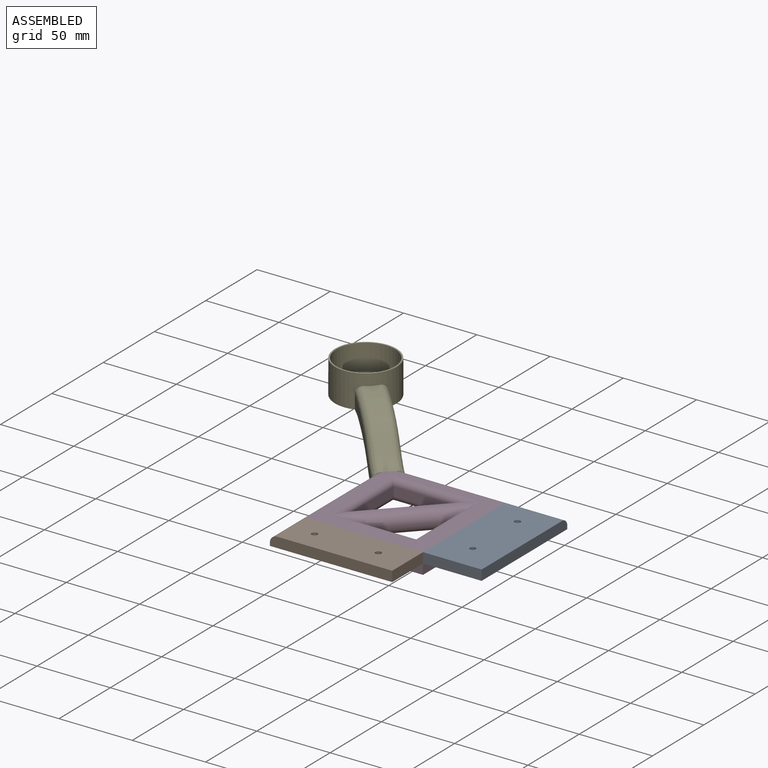
[diagram: assembled view]
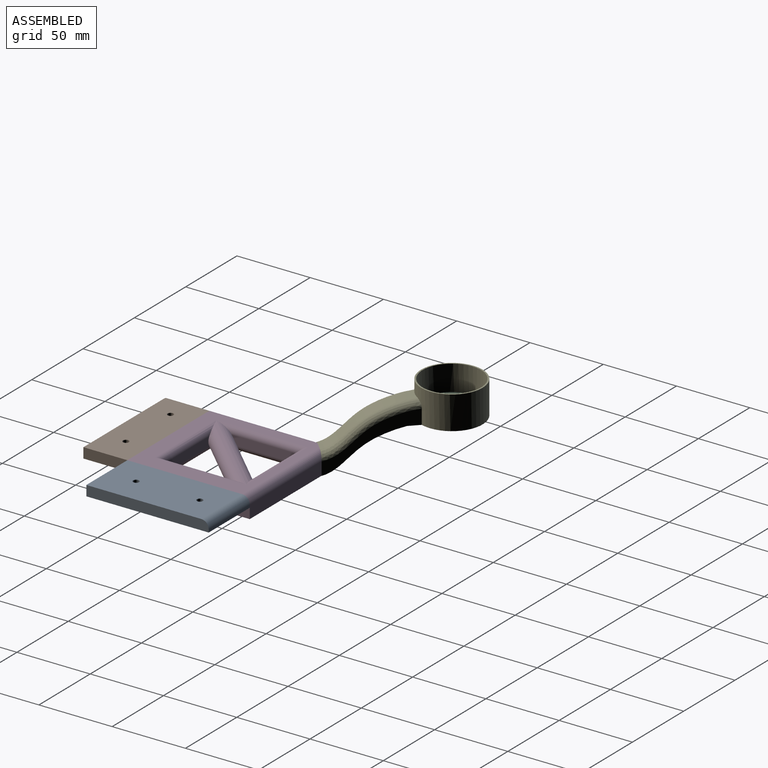
[diagram: assembled view, second angle]
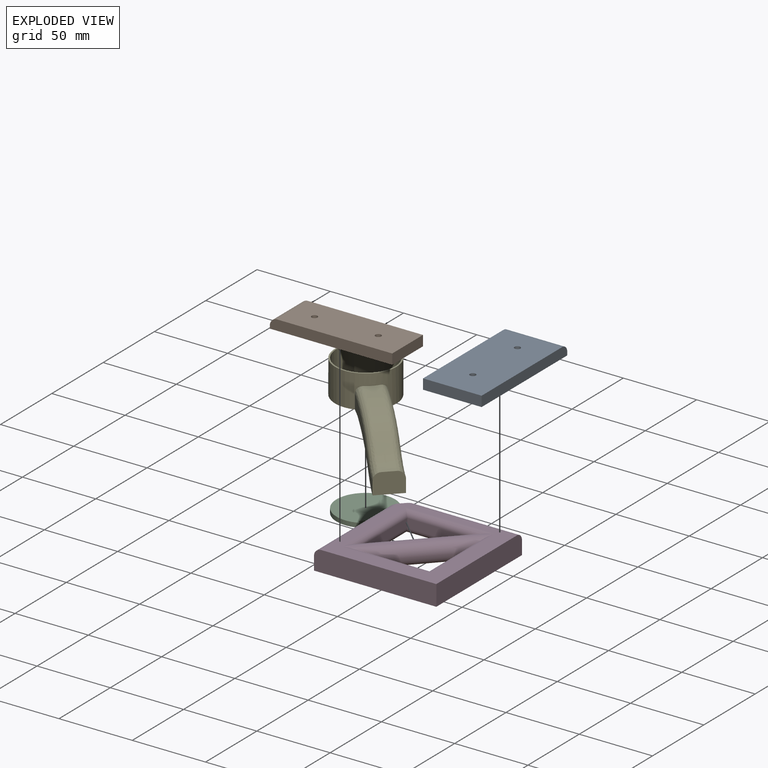
[diagram: exploded view]
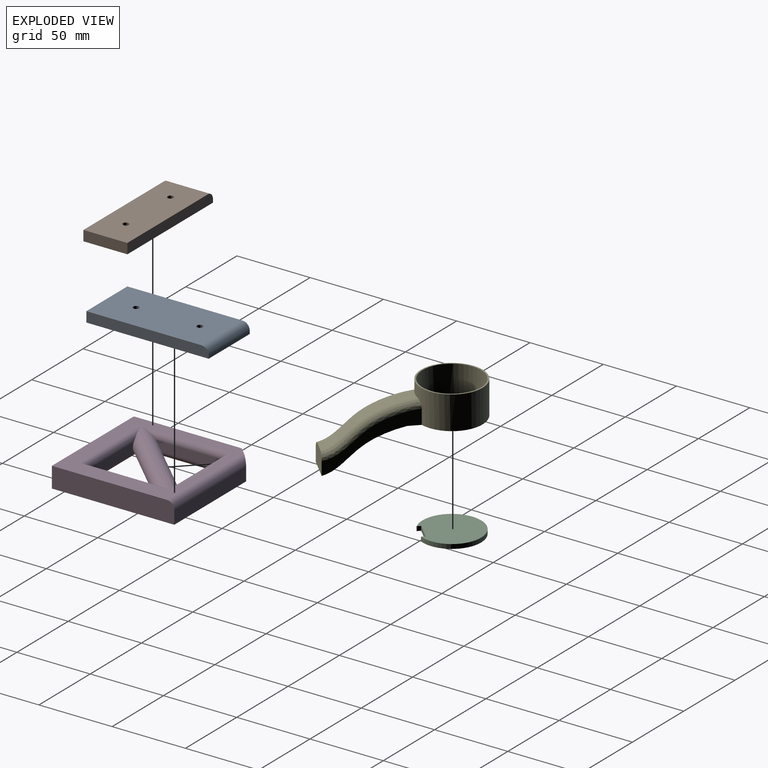
[diagram: exploded view, second angle]
ASSEMBLY  parts=5 mates=3
PART A: 9 faces, bbox 40x83.5x7 mm
  f0: plane 40x2mm, normal (0,1,0), area 80mm2, adj f1,f5,f6,f8
  f1: plane 83.51x7mm, normal (-1,0,0), area 579.2mm2, adj f0,f2,f6,f7,f8
  f2: plane 40x7mm, normal (0,-1,0), area 280mm2, adj f1,f5,f6,f7
  f3: cylinder r=2mm len=7mm, axis (0,0,1), area 88mm2, adj f6,f7
  f4: cylinder r=2mm len=7mm, axis (0,0,1), area 88mm2, adj f6,f7
  f5: plane 83.51x7mm, normal (1,0,0), area 579.2mm2, adj f0,f2,f6,f7,f8
  f6: plane 83.51x40mm, normal (0,0,-1), area 3315.3mm2, adj f0,f1,f2,f3,f4,f5
  f7: plane 78.51x40mm, normal (0,0,1), area 3115.3mm2, adj f1,f2,f3,f4,f5,f8
  f8: cylinder r=5mm len=40mm, axis (-1,0,0), area 314.2mm2, adj f0,f1,f5,f7
PART B: 9 faces, bbox 83.5x30x7 mm
  f0: plane 83.51x7mm, normal (0,1,0), area 579.2mm2, adj f1,f4,f6,f7,f8
  f1: plane 30x2mm, normal (-1,0,0), area 60mm2, adj f0,f2,f6,f8
  f2: plane 83.51x7mm, normal (0,-1,0), area 579.2mm2, adj f1,f4,f6,f7,f8
  f3: cylinder r=2mm len=7mm, axis (0,0,1), area 88mm2, adj f6,f7
  f4: plane 30x7mm, normal (1,0,0), area 210mm2, adj f0,f2,f6,f7
  f5: cylinder r=2mm len=7mm, axis (0,0,1), area 88mm2, adj f6,f7
  f6: plane 83.51x30mm, normal (0,0,-1), area 2480.2mm2, adj f0,f1,f2,f3,f4,f5
  f7: plane 78.51x30mm, normal (0,0,1), area 2330.2mm2, adj f0,f2,f3,f4,f5,f8
  f8: cylinder r=5mm len=30mm, axis (0,-1,0), area 235.6mm2, adj f0,f1,f2,f7
PART C: 6 faces, bbox 38.7x40x3 mm
  f0: plane 3x2.56mm, normal (0,-1,0), area 7.7mm2, adj f1,f3,f4,f5
  f1: cylinder r=20mm len=40mm, axis (0,0,-1), area 334.1mm2, adj f0,f2,f4,f5
  f2: plane 3x2.56mm, normal (0,1,0), area 7.7mm2, adj f1,f3,f4,f5
  f3: plane 14x3mm, normal (1,0,0), area 42mm2, adj f0,f2,f4,f5
  f4: plane 40x38.74mm, normal (0,0,1), area 1208.9mm2, adj f0,f1,f2,f3
  f5: plane 40x38.74mm, normal (0,0,-1), area 1208.9mm2, adj f0,f1,f2,f3
PART D: 23 faces, bbox 83.5x83.5x14 mm
  f0: plane 45.42x6mm, normal (1,0,0), area 268.6mm2, adj f1,f12,f15,f19
  f1: plane 43.75x6mm, normal (0,-1,0), area 258.7mm2, adj f0,f12,f16,f20
  f2: plane 70.08x9mm, normal (-1,0,0), area 630.7mm2, adj f3,f8,f9,f22
  f3: plane 83.51x14mm, normal (0,-1,0), area 1163.8mm2, adj f2,f4,f9,f10,f22
  f4: plane 83.51x14mm, normal (1,0,0), area 1163.8mm2, adj f3,f5,f9,f10,f21
  f5: plane 70.08x9mm, normal (0,1,0), area 630.7mm2, adj f4,f8,f9,f21
  f6: plane 43.75x6mm, normal (0,1,0), area 258.7mm2, adj f7,f11,f13,f17
  f7: plane 45.42x6mm, normal (-1,0,0), area 268.6mm2, adj f6,f11,f14,f18
  f8: plane 14x13.44mm, normal (-0.71,0.71,0), area 250.8mm2, adj f2,f5,f9,f10,f21,f22
  f9: plane 83.51x83.51mm, normal (0,0,-1), area 3098.6mm2, adj f2,f3,f4,f5,f8,f11,f12,f17
  f10: plane 78.51x78.51mm, normal (0,0,1), area 2372.8mm2, adj f3,f4,f8,f11,f12,f13,f14,f15
  f11: cylinder r=7mm len=67.54mm, axis (-0.69,-0.72,0), area 1536.3mm2, adj f6,f7,f9,f10,f13,f14,f17,f18
  f12: cylinder r=7mm len=67.54mm, axis (0.69,0.72,0), area 1536.3mm2, adj f0,f1,f9,f10,f15,f16,f19,f20
  f13: cylinder r=4mm len=60.38mm, axis (-1,0,0), area 316.3mm2, adj f6,f10,f11,f14
  f14: cylinder r=4mm len=62.69mm, axis (0,-1,0), area 328.4mm2, adj f7,f10,f11,f13
  f15: cylinder r=4mm len=62.69mm, axis (0,1,0), area 328.4mm2, adj f0,f10,f12,f16
  f16: cylinder r=4mm len=60.38mm, axis (1,0,0), area 316.3mm2, adj f1,f10,f12,f15
  f17: cylinder r=4mm len=60.38mm, axis (1,0,0), area 316.3mm2, adj f6,f9,f11,f18
  f18: cylinder r=4mm len=62.69mm, axis (0,1,0), area 328.4mm2, adj f7,f9,f11,f17
  f19: cylinder r=4mm len=62.69mm, axis (0,-1,0), area 328.4mm2, adj f0,f9,f12,f20
  f20: cylinder r=4mm len=60.38mm, axis (-1,0,0), area 316.3mm2, adj f1,f9,f12,f19
  f21: cylinder r=5mm len=75.08mm, axis (-1,0,0), area 564.6mm2, adj f4,f5,f8,f10
  f22: cylinder r=5mm len=75.08mm, axis (0,-1,0), area 564.6mm2, adj f2,f3,f8,f10
PART E: 36 faces, bbox 98.7x42.7x50.2 mm
  f0: plane 8.39x3.64mm, normal (0,0,-1), area 27.3mm2, adj f14,f15,f22,f25
  f1: cylinder r=20mm len=40mm, axis (0,0,-1), area 2765.1mm2, adj f3,f4,f6,f8,f13,f14,f24,f25
  f2: plane 8.39x3.64mm, normal (0,0,-1), area 27.3mm2, adj f14,f16,f22,f27
  f3: plane 5.01x2.02mm, normal (0,-1,0), area 8.2mm2, adj f1,f5,f9,f10,f11,f23,f24
  f4: plane 5.01x2.02mm, normal (0,1,0), area 8.2mm2, adj f1,f5,f17,f18,f19,f23,f24
  f5: plane 19x2.63mm, normal (-1,0,0), area 50mm2, adj f3,f4,f23,f24
  f6: plane 5.01x2.56mm, normal (0,-1,0), area 11.8mm2, adj f1,f7,f17,f18,f19,f23,f24
  f7: plane 14x3.75mm, normal (1,0,0), area 52.5mm2, adj f6,f8,f23,f24
  f8: plane 5.01x2.56mm, normal (0,1,0), area 11.8mm2, adj f1,f7,f9,f10,f11,f23,f24
  f9: plane 2.53x1.67mm, normal (0,0,-1), area 2.8mm2, adj f3,f8,f10,f14
  f10: plane 2.5x1.02mm, normal (-1,0,0), area 2.6mm2, adj f3,f8,f9,f11
  f11: bspline ~19x6mm, area 0.2mm2, adj f3,f8,f10,f23
  f12: cylinder r=21mm len=42mm, axis (0,0,-1), area 2714.2mm2, adj f13,f14,f15,f16,f20,f34,f35
  f13: plane 42x42mm, normal (0,0,1), area 128.8mm2, adj f1,f12
  f14: plane 42.01x41.18mm, normal (0,0,-1), area 116.9mm2, adj f0,f1,f2,f9,f12,f17,f25,f27
  f15: plane 56.88x36.9mm, normal (0,1,0), area 477.4mm2, adj f0,f12,f21,f22,f35
  f16: plane 56.88x36.9mm, normal (0,-1,0), area 477.4mm2, adj f2,f12,f21,f22,f34
  f17: plane 2.53x1.67mm, normal (0,0,-1), area 2.8mm2, adj f4,f6,f14,f18
  f18: plane 2.5x1.02mm, normal (-1,0,0), area 2.6mm2, adj f4,f6,f17,f19
  f19: bspline ~19x6mm, area 0.2mm2, adj f4,f6,f18,f23
  f20: bspline ~60x27.95mm, area 566.8mm2, adj f12,f21,f34,f35
  f21: plane 19.48x14.48mm, normal (1,0,0), area 255mm2, adj f15,f16,f20,f22,f34,f35
  f22: bspline ~49.07x26.98mm, area 529.9mm2, adj f0,f2,f15,f16,f21,f25,f27,f29
  f23: cylinder r=1.36mm len=19mm, axis (0,1,0), area 29.4mm2, adj f3,f4,f5,f6,f7,f8,f11,f19
  f24: plane 19x3.15mm, normal (0,0,1), area 21.3mm2, adj f1,f3,f4,f5,f6,f7,f8
  f25: plane 36.34x16.73mm, normal (0,-1,0), area 80mm2, adj f0,f1,f14,f22,f26,f28,f29
  f26: plane 11.8x3.59mm, normal (0,0,-1), area 35.3mm2, adj f1,f25,f27,f28
  f27: plane 36.32x16.71mm, normal (0,1,0), area 81mm2, adj f1,f2,f14,f22,f26,f28,f29
  f28: plane 11.8x0.38mm, normal (-1,0,0), area 4.5mm2, adj f25,f26,f27,f29
  f29: bspline ~37.54x19.62mm, area 427.8mm2, adj f22,f25,f27,f28
  f30: bspline ~18.51x11.8mm, area 173.7mm2, adj f22,f31,f32,f33
  f31: plane 11.8x2.38mm, normal (-0.97,0,0.26), area 29mm2, adj f22,f30,f32,f33
  f32: plane 13.58x9.64mm, normal (0,-1,0), area 16.6mm2, adj f22,f30,f31
  f33: plane 13.75x9.8mm, normal (0,1,0), area 16.9mm2, adj f22,f30,f31
  f34: bspline ~58.56x33.09mm, area 502.8mm2, adj f12,f16,f20,f21
  f35: bspline ~58.56x33.09mm, area 502.8mm2, adj f12,f15,f20,f21
PLACE A t=(27.8,25.81,-30.02)mm
PLACE B t=(27.8,25.81,-30.02)mm
PLACE C rot(axis=(0,0,-1),45deg) t=(-60.68,114.29,-14.25)mm
PLACE D t=(27.8,25.81,-30.02)mm fixed
PLACE E rot(axis=(0,0,-1),45deg) t=(-60.68,114.29,-14.25)mm
MATE fastened A.f7 <-> D.f10  axis (0,0,1) through (69.56,23.31,-30.02)mm
MATE fastened B.f7 <-> D.f10  axis (0,0,1) through (30.3,-15.95,-30.02)mm
MATE fastened E.f21 <-> D.f8  axis (0.71,-0.71,0) through (-7.23,60.84,-37.37)mm
